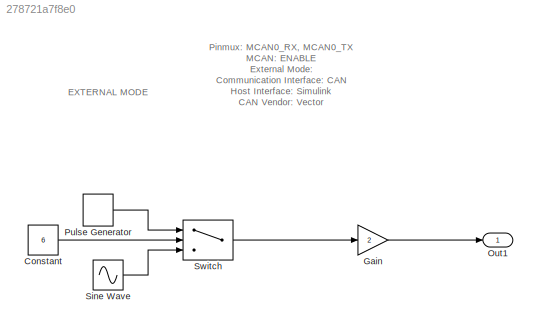
MODEL slx_278721a7f8e0
KIND model
CONFIG AbsTol = auto
CONFIG EnableMultiTasking = off
CONFIG FixedStep = auto
CONFIG MaxStep = auto
CONFIG MinStep = auto
CONFIG RelTol = 1e-3
CONFIG SampleTimeConstraint = Unconstrained
CONFIG SolverName = FixedStepAuto
CONFIG StartTime = 0.0
CONFIG StopTime = inf
BLOCK [Constant] Constant
  Value = 6
BLOCK [Gain] Gain
  Gain = 2
BLOCK [Outport] Out1
BLOCK [DiscretePulseGenerator] Pulse Generator
  Amplitude = 20
  Period = 20
  PulseWidth = 15
BLOCK [Sin] Sine Wave
  Amplitude = 15
  Frequency = 0.5
  SampleTime = 0
BLOCK [Switch] Switch
  Criteria = u2 > Threshold
  InputSameDT = off
  SaturateOnIntegerOverflow = off
  Threshold = 5
ANNOTATION (root): Pinmux: MCAN0_RX, MCAN0_TX MCAN : ENABLE External Mode: Communication Interface: CAN Host Interface: Simulink CAN Vendor: Vector CAN Device: VN1630A CAN Channel Number: 1 CAN ID Command: 35 CAN ID Response: 45
ANNOTATION (root): EXTERNAL MODE
LINE Constant:1 -> Switch:2
LINE Gain:1 -> Out1:1
LINE Pulse Generator:1 -> Switch:1
LINE Sine Wave:1 -> Switch:3
LINE Switch:1 -> Gain:1
